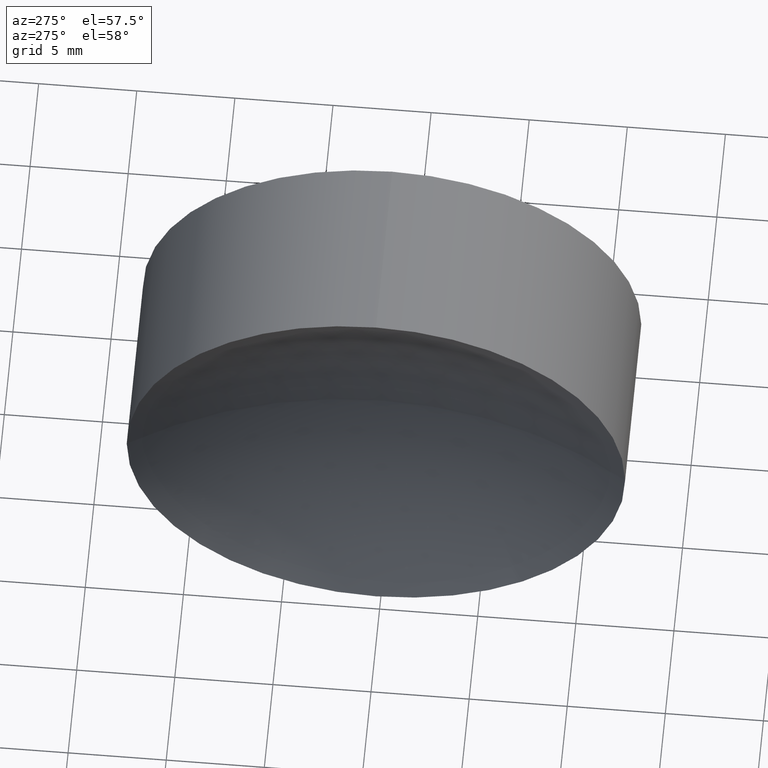
[diagram: clean part render]
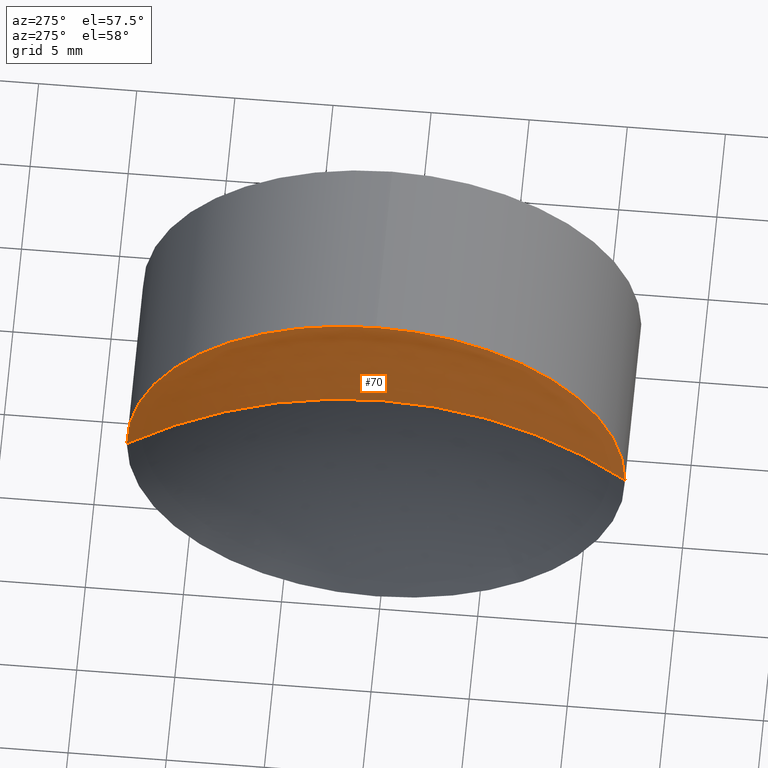
[diagram: same view with one face highlighted and labeled with its STEP entity id]
A machine part, auxiliary view. The second image highlights one B-rep face of the part: STEP entity #70.
In plain terms, the highlighted spherical surface has radius 23.6 mm.
Its self-contained STEP definition (entity closure, byte-faithful):
#13 = DIRECTION ( 'NONE',  ( 0.0000000000000000000, 0.0000000000000000000, -1.000000000000000000 ) ) ;
#18 = VERTEX_POINT ( 'NONE', #183 ) ;
#22 = CARTESIAN_POINT ( 'NONE',  ( 115.3941588982569800, 52.52260287298740600, -1.555301434917137100E-015 ) ) ;
#25 = DIRECTION ( 'NONE',  ( -1.000000000000000000, -0.0000000000000000000, -0.0000000000000000000 ) ) ;
#28 = DIRECTION ( 'NONE',  ( 0.0000000000000000000, 1.224646799147353200E-016, -1.000000000000000000 ) ) ;
#37 = VERTEX_POINT ( 'NONE', #22 ) ;
#39 = ORIENTED_EDGE ( 'NONE', *, *, #181, .F. ) ;
#53 = VERTEX_POINT ( 'NONE', #133 ) ;
#67 = DIRECTION ( 'NONE',  ( 0.0000000000000000000, 1.000000000000000000, 0.0000000000000000000 ) ) ;
#70 = ADVANCED_FACE ( 'NONE', ( #195 ), #100, .F. ) ;
#71 = AXIS2_PLACEMENT_3D ( 'NONE', #171, #13, #67 ) ;
#73 = DIRECTION ( 'NONE',  ( 0.0000000000000000000, 1.000000000000000000, 1.224646799147353500E-016 ) ) ;
#90 = CARTESIAN_POINT ( 'NONE',  ( 115.3941588982569800, 65.22260287298739500, 0.0000000000000000000 ) ) ;
#96 = EDGE_CURVE ( 'NONE', #53, #37, #232, .T. ) ;
#99 = ORIENTED_EDGE ( 'NONE', *, *, #101, .T. ) ;
#100 = SPHERICAL_SURFACE ( 'NONE', #71, 23.59999999999999400 ) ;
#101 = EDGE_CURVE ( 'NONE', #37, #164, #144, .T. ) ;
#104 = EDGE_LOOP ( 'NONE', ( #39, #190, #99, #203 ) ) ;
#119 = DIRECTION ( 'NONE',  ( 0.0000000000000000000, 0.0000000000000000000, 1.000000000000000000 ) ) ;
#131 = AXIS2_PLACEMENT_3D ( 'NONE', #187, #25, #213 ) ;
#133 = CARTESIAN_POINT ( 'NONE',  ( 119.1027034462293400, 65.22260287298739500, 0.0000000000000000000 ) ) ;
#137 = DIRECTION ( 'NONE',  ( 0.0000000000000000000, 0.0000000000000000000, 1.000000000000000000 ) ) ;
#140 = CIRCLE ( 'NONE', #161, 12.69999999999998900 ) ;
#144 = CIRCLE ( 'NONE', #131, 12.69999999999998900 ) ;
#161 = AXIS2_PLACEMENT_3D ( 'NONE', #90, #173, #119 ) ;
#164 = VERTEX_POINT ( 'NONE', #214 ) ;
#170 = AXIS2_PLACEMENT_3D ( 'NONE', #189, #28, #73 ) ;
#171 = CARTESIAN_POINT ( 'NONE',  ( 95.50270344622933300, 65.22260287298739500, 0.0000000000000000000 ) ) ;
#173 = DIRECTION ( 'NONE',  ( -1.000000000000000000, -0.0000000000000000000, -0.0000000000000000000 ) ) ;
#177 = AXIS2_PLACEMENT_3D ( 'NONE', #218, #137, #227 ) ;
#181 = EDGE_CURVE ( 'NONE', #53, #18, #184, .T. ) ;
#183 = CARTESIAN_POINT ( 'NONE',  ( 115.3941588982569800, 77.92260287298738300, 0.0000000000000000000 ) ) ;
#184 = CIRCLE ( 'NONE', #177, 23.59999999999999400 ) ;
#187 = CARTESIAN_POINT ( 'NONE',  ( 115.3941588982569800, 65.22260287298739500, 0.0000000000000000000 ) ) ;
#189 = CARTESIAN_POINT ( 'NONE',  ( 95.50270344622933300, 65.22260287298739500, 0.0000000000000000000 ) ) ;
#190 = ORIENTED_EDGE ( 'NONE', *, *, #96, .T. ) ;
#195 = FACE_OUTER_BOUND ( 'NONE', #104, .T. ) ;
#203 = ORIENTED_EDGE ( 'NONE', *, *, #210, .T. ) ;
#210 = EDGE_CURVE ( 'NONE', #164, #18, #140, .T. ) ;
#213 = DIRECTION ( 'NONE',  ( 0.0000000000000000000, 0.0000000000000000000, 1.000000000000000000 ) ) ;
#214 = CARTESIAN_POINT ( 'NONE',  ( 115.3941588982569800, 65.22260287298739500, 12.69999999999998900 ) ) ;
#218 = CARTESIAN_POINT ( 'NONE',  ( 95.50270344622933300, 65.22260287298739500, 0.0000000000000000000 ) ) ;
#227 = DIRECTION ( 'NONE',  ( 1.000000000000000000, 0.0000000000000000000, 0.0000000000000000000 ) ) ;
#232 = CIRCLE ( 'NONE', #170, 23.59999999999999400 ) ;